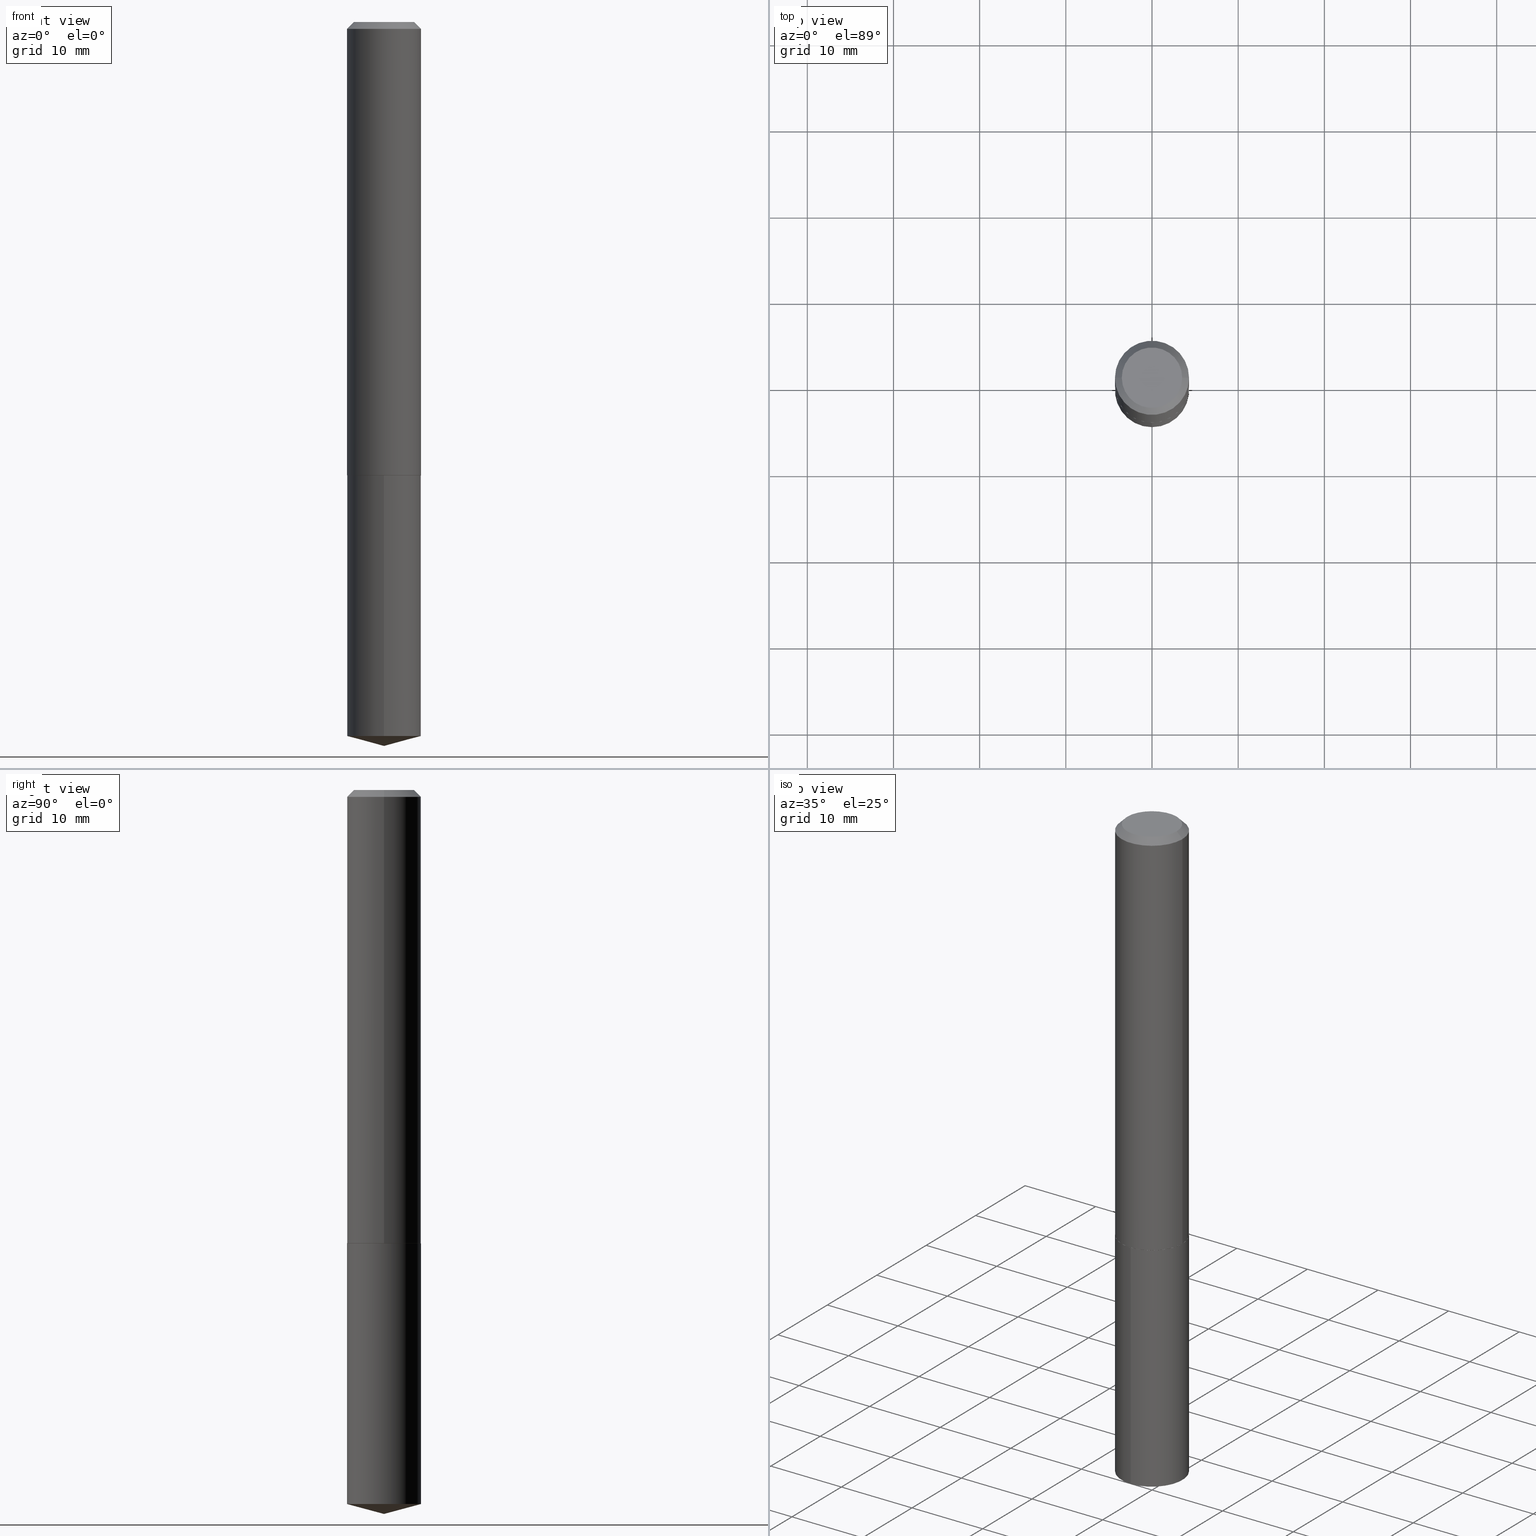
[diagram: canonical four-view strip — front | top / right | iso, engineering-drawing reading convention]
A machine part, canonical four-view strip (front | top / right | iso — engineering-drawing reading convention). The complete STEP part file that produces these views, byte-faithful:
ISO-10303-21;
HEADER;
FILE_DESCRIPTION (( 'STEP AP203' ),
    '1' );
FILE_NAME ('63021.STEP',
    '2024-04-23T07:50:31',
    ( '' ),
    ( '' ),
    'SwSTEP 2.0',
    'SolidWorks 2023',
    '' );
FILE_SCHEMA (( 'CONFIG_CONTROL_DESIGN' ));
ENDSEC;

DATA;
#1 = DIRECTION ( 'NONE',  ( -6.982962677686265922E-15, -1.000000000000000000, 3.227227399485248397E-15 ) ) ;
#2 = VERTEX_POINT ( 'NONE', #236 ) ;
#3 = EDGE_CURVE ( 'NONE', #146, #276, #387, .T. ) ;
#4 = CARTESIAN_POINT ( 'NONE',  ( 5.064321350728799708E-29, -7.230508704610271415E-15, -2.070899999999999963 ) ) ;
#5 = CARTESIAN_POINT ( 'NONE',  ( 5.064321350728799708E-29, -7.230508704610271415E-15, -2.070900000000000407 ) ) ;
#6 = CARTESIAN_POINT ( 'NONE',  ( 5.064321350728799708E-29, -7.230508704610271415E-15, -2.070900000000000407 ) ) ;
#7 = CARTESIAN_POINT ( 'NONE',  ( -1.182215581332204746E-15, -0.1693000000000113858, -3.261736201721411099 ) ) ;
#8 = PLANE ( 'NONE',  #169 ) ;
#9 = CARTESIAN_POINT ( 'NONE',  ( 7.642090019328600035E-31, -1.091087918388489897E-16, -0.03125000000000020123 ) ) ;
#10 = ORIENTED_EDGE ( 'NONE', *, *, #67, .F. ) ;
#11 = EDGE_CURVE ( 'NONE', #353, #146, #65, .T. ) ;
#12 = AXIS2_PLACEMENT_3D ( 'NONE', #237, #207, #178 ) ;
#13 = ORIENTED_EDGE ( 'NONE', *, *, #306, .T. ) ;
#14 = ADVANCED_FACE ( 'NONE', ( #68 ), #199, .T. ) ;
#15 = AXIS2_PLACEMENT_3D ( 'NONE', #9, #272, #174 ) ;
#16 = PRODUCT_DEFINITION_SHAPE ( 'NONE', 'NONE',  #223 ) ;
#17 = DIMENSIONAL_EXPONENTS ( 1.000000000000000000, 0.000000000000000000, 0.000000000000000000, 0.000000000000000000, 0.000000000000000000, 0.000000000000000000, 0.000000000000000000 ) ;
#18 = CIRCLE ( 'NONE', #228, 0.1380500000000000060 ) ;
#19 = AXIS2_PLACEMENT_3D ( 'NONE', #97, #122, #1 ) ;
#20 = APPROVAL_DATE_TIME ( #358, #266 ) ;
#21 = DIRECTION ( 'NONE',  ( -6.745023994389839133E-15, -0.9659258262890676461, 0.2588190451025227934 ) ) ;
#22 = EDGE_LOOP ( 'NONE', ( #277, #334, #216, #165 ) ) ;
#23 = DATE_AND_TIME ( #260, #95 ) ;
#24 = ADVANCED_FACE ( 'NONE', ( #250 ), #206, .F. ) ;
#25 = ORIENTED_EDGE ( 'NONE', *, *, #306, .F. ) ;
#26 = CLOSED_SHELL ( 'NONE', ( #307, #386, #299, #363, #24 ) ) ;
#27 = ORIENTED_EDGE ( 'NONE', *, *, #253, .F. ) ;
#28 = PERSON_AND_ORGANIZATION ( #304, #350 ) ;
#29 = FACE_OUTER_BOUND ( 'NONE', #295, .T. ) ;
#30 = CARTESIAN_POINT ( 'NONE',  ( 0.1693000000000000338, -1.291324373171134113E-15, -0.03125000000000020123 ) ) ;
#31 = CIRCLE ( 'NONE', #128, 0.1688000000000002554 ) ;
#32 = VECTOR ( 'NONE', #309, 39.37007874015748143 ) ;
#33 = DIRECTION ( 'NONE',  ( 1.000000000000000000, -6.982962677686266711E-15, 4.876176775795935793E-29 ) ) ;
#34 = ORIENTED_EDGE ( 'NONE', *, *, #49, .T. ) ;
#35 = DIRECTION ( 'NONE',  ( 1.000000000000000000, -6.982962677686264344E-15, 0.000000000000000000 ) ) ;
#36 = EDGE_CURVE ( 'NONE', #262, #390, #246, .T. ) ;
#37 = LINE ( 'NONE', #279, #220 ) ;
#38 = CARTESIAN_POINT ( 'NONE',  ( -0.1693000000000000338, 1.073106789493436109E-15, -0.03125000000000020123 ) ) ;
#39 = DIRECTION ( 'NONE',  ( -2.445468806185136877E-29, 3.491481338843145188E-15, 1.000000000000000000 ) ) ;
#40 = VECTOR ( 'NONE', #39, 39.37007874015748143 ) ;
#41 = DIRECTION ( 'NONE',  ( 1.000000000000000000, -6.982962677686266711E-15, 4.876176775795935793E-29 ) ) ;
#42 = CIRCLE ( 'NONE', #162, 0.1693000000000000338 ) ;
#43 =( NAMED_UNIT ( * ) PLANE_ANGLE_UNIT ( ) SI_UNIT ( $, .RADIAN. ) );
#44 = EDGE_CURVE ( 'NONE', #94, #151, #238, .T. ) ;
#45 = PERSON_AND_ORGANIZATION ( #304, #350 ) ;
#46 = LINE ( 'NONE', #101, #120 ) ;
#47 = EDGE_CURVE ( 'NONE', #2, #168, #31, .T. ) ;
#48 = LOCAL_TIME ( 3, 50, 31.00000000000000000, #330 ) ;
#49 = EDGE_CURVE ( 'NONE', #168, #353, #239, .T. ) ;
#50 = ORIENTED_EDGE ( 'NONE', *, *, #44, .F. ) ;
#51 = DIRECTION ( 'NONE',  ( 1.000000000000000000, -6.982962677686266711E-15, 4.876184709317979001E-29 ) ) ;
#52 = ORIENTED_EDGE ( 'NONE', *, *, #3, .F. ) ;
#53 = ORIENTED_EDGE ( 'NONE', *, *, #379, .T. ) ;
#54 = PERSON_AND_ORGANIZATION ( #304, #350 ) ;
#55 = CARTESIAN_POINT ( 'NONE',  ( 5.063098616325708028E-29, -7.228762963940850701E-15, -2.070400000000000240 ) ) ;
#56 = DIRECTION ( 'NONE',  ( -6.982962677686265922E-15, -1.000000000000000000, 3.227227399485248397E-15 ) ) ;
#57 = DESIGN_CONTEXT ( 'detailed design', #316, 'design' ) ;
#58 = DIRECTION ( 'NONE',  ( -6.982962677686265922E-15, -1.000000000000000000, 3.227227399485248397E-15 ) ) ;
#59 = DIRECTION ( 'NONE',  ( 2.445468806185136597E-29, -3.491481338843145583E-15, -1.000000000000000000 ) ) ;
#60 = AXIS2_PLACEMENT_3D ( 'NONE', #249, #241, #56 ) ;
#61 = EDGE_CURVE ( 'NONE', #390, #262, #18, .T. ) ;
#62 = FACE_OUTER_BOUND ( 'NONE', #111, .T. ) ;
#63 = CARTESIAN_POINT ( 'NONE',  ( -8.819036213886965882E-28, 1.259139726017065029E-13, 36.06297874015748306 ) ) ;
#64 = DIRECTION ( 'NONE',  ( -2.445468806185136597E-29, 3.491481338843145583E-15, 1.000000000000000000 ) ) ;
#65 = LINE ( 'NONE', #344, #40 ) ;
#66 = DIRECTION ( 'NONE',  ( 0.7071067811868372299, -2.468850131085291414E-15, 0.7071067811862578045 ) ) ;
#67 = EDGE_CURVE ( 'NONE', #390, #146, #362, .T. ) ;
#68 = FACE_OUTER_BOUND ( 'NONE', #147, .T. ) ;
#69 = AXIS2_PLACEMENT_3D ( 'NONE', #338, #59, #185 ) ;
#70 = DIRECTION ( 'NONE',  ( -1.000000000000000000, 6.982962677686265922E-15, -4.876176775795935793E-29 ) ) ;
#71 = CARTESIAN_POINT ( 'NONE',  ( 0.000000000000000000, 0.000000000000000000, 0.000000000000000000 ) ) ;
#72 = AXIS2_PLACEMENT_3D ( 'NONE', #374, #137, #51 ) ;
#73 = ADVANCED_FACE ( 'NONE', ( #337 ), #8, .F. ) ;
#74 = DIRECTION ( 'NONE',  ( -2.445454975221157966E-29, 3.491501145570772643E-15, 1.000000000000000000 ) ) ;
#75 = FACE_OUTER_BOUND ( 'NONE', #144, .T. ) ;
#76 = LINE ( 'NONE', #294, #205 ) ;
#77 = DIRECTION ( 'NONE',  ( -2.445454975221157966E-29, 3.491501145570772643E-15, 1.000000000000000000 ) ) ;
#78 = COORDINATED_UNIVERSAL_TIME_OFFSET ( 5, 0, .BEHIND. ) ;
#79 = EDGE_CURVE ( 'NONE', #357, #151, #323, .T. ) ;
#80 = CARTESIAN_POINT ( 'NONE',  ( 8.087364148553891631E-29, -1.154674343851710215E-14, -3.307100000000000151 ) ) ;
#81 = APPROVAL_STATUS ( 'not_yet_approved' ) ;
#82 =( GEOMETRIC_REPRESENTATION_CONTEXT ( 3 ) GLOBAL_UNCERTAINTY_ASSIGNED_CONTEXT ( ( #100 ) ) GLOBAL_UNIT_ASSIGNED_CONTEXT ( ( #196, #43, #259 ) ) REPRESENTATION_CONTEXT ( 'NONE', 'WORKASPACE' ) );
#83 = ORIENTED_EDGE ( 'NONE', *, *, #251, .T. ) ;
#84 = PERSON_AND_ORGANIZATION ( #304, #350 ) ;
#85 = ADVANCED_FACE ( 'NONE', ( #310 ), #181, .T. ) ;
#86 = CIRCLE ( 'NONE', #60, 0.1693000000000000338 ) ;
#87 = CIRCLE ( 'NONE', #313, 0.1693000000000002836 ) ;
#88 = DIRECTION ( 'NONE',  ( -2.445454975221157966E-29, 3.491501145570772643E-15, 1.000000000000000000 ) ) ;
#89 = CARTESIAN_POINT ( 'NONE',  ( 0.1693000000000000338, -1.270591102861569468E-15, -0.03125000000000020123 ) ) ;
#90 = DIRECTION ( 'NONE',  ( -2.445468806185136597E-29, 3.491481338843145583E-15, 1.000000000000000000 ) ) ;
#91 = DIRECTION ( 'NONE',  ( 6.982962677686265922E-15, 1.000000000000000000, -3.491501145570772643E-15 ) ) ;
#92 = ADVANCED_FACE ( 'NONE', ( #302 ), #153, .F. ) ;
#93 = CARTESIAN_POINT ( 'NONE',  ( 0.1688000000000002554, -8.409232804603714801E-15, -2.070899999999999963 ) ) ;
#94 = VERTEX_POINT ( 'NONE', #7 ) ;
#95 = LOCAL_TIME ( 3, 50, 31.00000000000000000, #141 ) ;
#96 = CARTESIAN_POINT ( 'NONE',  ( -2.994835545909349753E-48, 4.275831445897006817E-34, 1.224646799147362773E-19 ) ) ;
#97 = CARTESIAN_POINT ( 'NONE',  ( 7.976457664901892933E-29, -1.138831466710772650E-14, -3.261736201721411543 ) ) ;
#98 = CARTESIAN_POINT ( 'NONE',  ( 5.063098616325708028E-29, -7.228762963940850701E-15, -2.070400000000000240 ) ) ;
#99 = DIRECTION ( 'NONE',  ( -2.445468806185136597E-29, 3.491481338843145583E-15, 1.000000000000000000 ) ) ;
#100 = UNCERTAINTY_MEASURE_WITH_UNIT (LENGTH_MEASURE( 1.000000000000000082E-05 ), #196, 'distance_accuracy_value', 'NONE');
#101 = CARTESIAN_POINT ( 'NONE',  ( -0.1693000000000001448, 1.202948851641850644E-15, -8.327757107801562718E-30 ) ) ;
#102 = DATE_AND_TIME ( #375, #289 ) ;
#103 = CYLINDRICAL_SURFACE ( 'NONE', #333, 0.1693000000000000338 ) ;
#104 = APPROVAL_ROLE ( '' ) ;
#105 = APPROVAL_STATUS ( 'not_yet_approved' ) ;
#106 = DATE_AND_TIME ( #384, #200 ) ;
#107 = EDGE_CURVE ( 'NONE', #94, #229, #86, .T. ) ;
#108 = EDGE_LOOP ( 'NONE', ( #385, #143, #183, #325 ) ) ;
#109 = MANIFOLD_SOLID_BREP ( 'Body-Move/Copy2[1]', #26 ) ;
#110 = CONICAL_SURFACE ( 'NONE', #382, 0.1693000000000002836, 0.7853981633978580623 ) ;
#111 = EDGE_LOOP ( 'NONE', ( #10, #126, #114, #269 ) ) ;
#112 = CALENDAR_DATE ( 2024, 23, 4 ) ;
#113 = MANIFOLD_SOLID_BREP ( 'Body-Move/Copy2[2]', #340 ) ;
#114 = ORIENTED_EDGE ( 'NONE', *, *, #226, .T. ) ;
#115 = PERSON_AND_ORGANIZATION ( #304, #350 ) ;
#116 = CC_DESIGN_PERSON_AND_ORGANIZATION_ASSIGNMENT ( #54, #301, ( #378 ) ) ;
#117 = DIRECTION ( 'NONE',  ( -2.445468806185136597E-29, 3.491481338843145583E-15, 1.000000000000000000 ) ) ;
#118 = CARTESIAN_POINT ( 'NONE',  ( 0.000000000000000000, 0.000000000000000000, 0.000000000000000000 ) ) ;
#119 = CIRCLE ( 'NONE', #356, 0.1693000000000000338 ) ;
#120 = VECTOR ( 'NONE', #215, 39.37007874015748143 ) ;
#121 = EDGE_LOOP ( 'NONE', ( #157, #13, #129, #148 ) ) ;
#122 = DIRECTION ( 'NONE',  ( -2.445454975221157966E-29, 3.491501145570772643E-15, 1.000000000000000000 ) ) ;
#123 = DIRECTION ( 'NONE',  ( 1.000000000000000000, -6.982962677686265922E-15, 4.876176775795935793E-29 ) ) ;
#124 = DIRECTION ( 'NONE',  ( 2.445454975221157686E-29, -3.491501145570772643E-15, -1.000000000000000000 ) ) ;
#125 = DIRECTION ( 'NONE',  ( -6.982962677686265922E-15, -1.000000000000000000, 3.227227399485248397E-15 ) ) ;
#126 = ORIENTED_EDGE ( 'NONE', *, *, #36, .F. ) ;
#127 = DIRECTION ( 'NONE',  ( -0.7071067811868372299, 7.493145998871401767E-15, 0.7071067811862578045 ) ) ;
#128 = AXIS2_PLACEMENT_3D ( 'NONE', #175, #99, #152 ) ;
#129 = ORIENTED_EDGE ( 'NONE', *, *, #44, .T. ) ;
#130 = AXIS2_PLACEMENT_3D ( 'NONE', #71, #138, #194 ) ;
#131 = CARTESIAN_POINT ( 'NONE',  ( 1.202948851641929333E-15, 0.1692999999999886263, -3.261736201721411987 ) ) ;
#132 = DIRECTION ( 'NONE',  ( 1.000000000000000000, -6.982962677686264344E-15, 0.000000000000000000 ) ) ;
#133 = APPROVAL ( #105, 'UNSPECIFIED' ) ;
#134 = VECTOR ( 'NONE', #66, 39.37007874015748143 ) ;
#135 = CC_DESIGN_SECURITY_CLASSIFICATION ( #378, ( #221 ) ) ;
#136 = PERSON_AND_ORGANIZATION ( #304, #350 ) ;
#137 = DIRECTION ( 'NONE',  ( -2.445468806185136597E-29, 3.491481338843145583E-15, 1.000000000000000000 ) ) ;
#138 = DIRECTION ( 'NONE',  ( 0.000000000000000000, 0.000000000000000000, 1.000000000000000000 ) ) ;
#139 = AXIS2_PLACEMENT_3D ( 'NONE', #4, #367, #123 ) ;
#140 = APPROVAL_PERSON_ORGANIZATION ( #351, #133, #380 ) ;
#141 = COORDINATED_UNIVERSAL_TIME_OFFSET ( 5, 0, .BEHIND. ) ;
#142 = CC_DESIGN_PERSON_AND_ORGANIZATION_ASSIGNMENT ( #115, #354, ( #221 ) ) ;
#143 = ORIENTED_EDGE ( 'NONE', *, *, #291, .T. ) ;
#144 = EDGE_LOOP ( 'NONE', ( #365, #231, #329 ) ) ;
#145 = AXIS2_PLACEMENT_3D ( 'NONE', #5, #124, #91 ) ;
#146 = VERTEX_POINT ( 'NONE', #30 ) ;
#147 = EDGE_LOOP ( 'NONE', ( #232, #282, #34, #332 ) ) ;
#148 = ORIENTED_EDGE ( 'NONE', *, *, #79, .F. ) ;
#149 = FACE_OUTER_BOUND ( 'NONE', #335, .T. ) ;
#150 = AXIS2_PLACEMENT_3D ( 'NONE', #292, #355, #349 ) ;
#151 = VERTEX_POINT ( 'NONE', #364 ) ;
#152 = DIRECTION ( 'NONE',  ( 1.000000000000000000, -6.982962677686267499E-15, 0.000000000000000000 ) ) ;
#153 = PLANE ( 'NONE',  #139 ) ;
#154 = ORIENTED_EDGE ( 'NONE', *, *, #11, .F. ) ;
#155 = CARTESIAN_POINT ( 'NONE',  ( 0.1693000000000002836, -8.410978545273137094E-15, -2.070400000000000240 ) ) ;
#156 = CARTESIAN_POINT ( 'NONE',  ( 1.202948851641900145E-15, 0.1692999999999927896, -2.070900000000000851 ) ) ;
#157 = ORIENTED_EDGE ( 'NONE', *, *, #347, .F. ) ;
#158 = DIRECTION ( 'NONE',  ( -0.7071067811865453523, 2.468850131082234184E-15, -0.7071067811865496822 ) ) ;
#159 = CARTESIAN_POINT ( 'NONE',  ( 5.063098616325708028E-29, -7.228762963940850701E-15, -2.070400000000000240 ) ) ;
#160 = APPROVAL_PERSON_ORGANIZATION ( #136, #266, #104 ) ;
#161 = DIRECTION ( 'NONE',  ( -2.445468806185136597E-29, 3.491481338843145583E-15, 1.000000000000000000 ) ) ;
#162 = AXIS2_PLACEMENT_3D ( 'NONE', #6, #240, #125 ) ;
#163 = CONICAL_SURFACE ( 'NONE', #150, 146.9311341562558084, 1.308996938995748538 ) ;
#164 = CIRCLE ( 'NONE', #19, 0.1693000000000000338 ) ;
#165 = ORIENTED_EDGE ( 'NONE', *, *, #226, .F. ) ;
#166 = ORIENTED_EDGE ( 'NONE', *, *, #49, .F. ) ;
#167 = CARTESIAN_POINT ( 'NONE',  ( 8.087364148553891631E-29, -1.154674343851710215E-14, -3.307100000000000151 ) ) ;
#168 = VERTEX_POINT ( 'NONE', #93 ) ;
#169 = AXIS2_PLACEMENT_3D ( 'NONE', #96, #352, #70 ) ;
#170 = LOCAL_TIME ( 3, 50, 31.00000000000000000, #193 ) ;
#171 = ORIENTED_EDGE ( 'NONE', *, *, #314, .F. ) ;
#172 = DATE_TIME_ROLE ( 'classification_date' ) ;
#173 = DIRECTION ( 'NONE',  ( 1.000000000000000000, -6.982962677686264344E-15, 0.000000000000000000 ) ) ;
#174 = DIRECTION ( 'NONE',  ( -1.000000000000000000, 6.982962677686265922E-15, 0.000000000000000000 ) ) ;
#175 = CARTESIAN_POINT ( 'NONE',  ( 5.064321350728799708E-29, -7.230508704610271415E-15, -2.070899999999999963 ) ) ;
#176 = CARTESIAN_POINT ( 'NONE',  ( 5.063098616325708028E-29, -7.228762963940850701E-15, -2.070400000000000240 ) ) ;
#177 = DIRECTION ( 'NONE',  ( -2.445468806185136597E-29, 3.491481338843145583E-15, 1.000000000000000000 ) ) ;
#178 = DIRECTION ( 'NONE',  ( -6.982962677686265922E-15, -1.000000000000000000, 3.227227399485248397E-15 ) ) ;
#179 = EDGE_CURVE ( 'NONE', #2, #303, #37, .T. ) ;
#180 = LINE ( 'NONE', #156, #32 ) ;
#181 = CONICAL_SURFACE ( 'NONE', #15, 0.1693000000000000338, 0.7853981633974452814 ) ;
#182 = AXIS2_PLACEMENT_3D ( 'NONE', #376, #161, #283 ) ;
#183 = ORIENTED_EDGE ( 'NONE', *, *, #11, .T. ) ;
#184 = ORIENTED_EDGE ( 'NONE', *, *, #61, .T. ) ;
#185 = DIRECTION ( 'NONE',  ( -1.000000000000000000, 6.982962677686265922E-15, 0.000000000000000000 ) ) ;
#186 = ORIENTED_EDGE ( 'NONE', *, *, #347, .T. ) ;
#187 = DIRECTION ( 'NONE',  ( 0.7071067811865453523, -7.319954787623248157E-15, -0.7071067811865496822 ) ) ;
#188 = ADVANCED_FACE ( 'NONE', ( #281 ), #110, .T. ) ;
#189 = DIRECTION ( 'NONE',  ( 1.000000000000000000, -6.982962677686265922E-15, 0.000000000000000000 ) ) ;
#190 = DIRECTION ( 'NONE',  ( -2.445468806185136597E-29, 3.491481338843145583E-15, 1.000000000000000000 ) ) ;
#191 = VECTOR ( 'NONE', #187, 39.37007874015748143 ) ;
#192 = EDGE_CURVE ( 'NONE', #276, #146, #119, .T. ) ;
#193 = COORDINATED_UNIVERSAL_TIME_OFFSET ( 5, 0, .BEHIND. ) ;
#194 = DIRECTION ( 'NONE',  ( 1.000000000000000000, 0.000000000000000000, 0.000000000000000000 ) ) ;
#195 = FACE_OUTER_BOUND ( 'NONE', #108, .T. ) ;
#196 =( CONVERSION_BASED_UNIT ( 'INCH', #381 ) LENGTH_UNIT ( ) NAMED_UNIT ( #17 ) );
#197 = LINE ( 'NONE', #167, #270 ) ;
#198 = EDGE_LOOP ( 'NONE', ( #204, #186, #300, #50 ) ) ;
#199 = CONICAL_SURFACE ( 'NONE', #369, 0.1693000000000002836, 0.7853981633978580623 ) ;
#200 = LOCAL_TIME ( 3, 50, 31.00000000000000000, #230 ) ;
#201 = EDGE_LOOP ( 'NONE', ( #328, #305 ) ) ;
#202 = APPROVAL_ROLE ( '' ) ;
#203 = EDGE_LOOP ( 'NONE', ( #210, #368 ) ) ;
#204 = ORIENTED_EDGE ( 'NONE', *, *, #107, .T. ) ;
#205 = VECTOR ( 'NONE', #263, 39.37007874015748143 ) ;
#206 = PLANE ( 'NONE',  #145 ) ;
#207 = DIRECTION ( 'NONE',  ( -2.445454975221157966E-29, 3.491501145570772643E-15, 1.000000000000000000 ) ) ;
#208 = DIRECTION ( 'NONE',  ( -2.445468806185136597E-29, 3.491481338843145583E-15, 1.000000000000000000 ) ) ;
#209 = DIRECTION ( 'NONE',  ( -2.445468806185136597E-29, 3.491481338843145583E-15, 1.000000000000000000 ) ) ;
#210 = ORIENTED_EDGE ( 'NONE', *, *, #379, .F. ) ;
#211 = CYLINDRICAL_SURFACE ( 'NONE', #234, 0.1693000000000000338 ) ;
#212 = CC_DESIGN_APPROVAL ( #266, ( #221 ) ) ;
#213 = DIRECTION ( 'NONE',  ( -2.445468806185136597E-29, 3.491481338843145583E-15, 1.000000000000000000 ) ) ;
#214 = DIRECTION ( 'NONE',  ( 1.000000000000000000, -6.982962677686265922E-15, 0.000000000000000000 ) ) ;
#215 = DIRECTION ( 'NONE',  ( -2.445468806185136877E-29, 3.491481338843145188E-15, 1.000000000000000000 ) ) ;
#216 = ORIENTED_EDGE ( 'NONE', *, *, #3, .T. ) ;
#217 = PERSON_AND_ORGANIZATION_ROLE ( 'design_owner' ) ;
#218 = APPROVAL_DATE_TIME ( #102, #133 ) ;
#219 = CARTESIAN_POINT ( 'NONE',  ( 5.064321350728799708E-29, -7.230508704610271415E-15, -2.070900000000000407 ) ) ;
#220 = VECTOR ( 'NONE', #127, 39.37007874015748143 ) ;
#221 = PRODUCT_DEFINITION_FORMATION_WITH_SPECIFIED_SOURCE ( 'ANY', '', #256, .NOT_KNOWN. ) ;
#222 = APPLICATION_PROTOCOL_DEFINITION ( 'international standard', 'config_control_design', 1994, #225 ) ;
#223 = PRODUCT_DEFINITION ( 'UNKNOWN', '', #221, #57 ) ;
#224 = PERSON_AND_ORGANIZATION_ROLE ( 'creator' ) ;
#225 = APPLICATION_CONTEXT ( 'configuration controlled 3d designs of mechanical parts and assemblies' ) ;
#226 = EDGE_CURVE ( 'NONE', #262, #276, #311, .T. ) ;
#227 = CC_DESIGN_DATE_AND_TIME_ASSIGNMENT ( #318, #290, ( #223 ) ) ;
#228 = AXIS2_PLACEMENT_3D ( 'NONE', #245, #209, #370 ) ;
#229 = VERTEX_POINT ( 'NONE', #131 ) ;
#230 = COORDINATED_UNIVERSAL_TIME_OFFSET ( 5, 0, .BEHIND. ) ;
#231 = ORIENTED_EDGE ( 'NONE', *, *, #253, .T. ) ;
#232 = ORIENTED_EDGE ( 'NONE', *, *, #179, .F. ) ;
#233 = CC_DESIGN_DATE_AND_TIME_ASSIGNMENT ( #106, #172, ( #378 ) ) ;
#234 = AXIS2_PLACEMENT_3D ( 'NONE', #274, #88, #58 ) ;
#235 = FACE_OUTER_BOUND ( 'NONE', #198, .T. ) ;
#236 = CARTESIAN_POINT ( 'NONE',  ( -0.1688000000000002554, -6.028463339473109878E-15, -2.070899999999999963 ) ) ;
#237 = CARTESIAN_POINT ( 'NONE',  ( 5.064321350728799708E-29, -7.230508704610271415E-15, -2.070900000000000407 ) ) ;
#238 = LINE ( 'NONE', #315, #298 ) ;
#239 = LINE ( 'NONE', #155, #134 ) ;
#240 = DIRECTION ( 'NONE',  ( -2.445454975221157966E-29, 3.491501145570772643E-15, 1.000000000000000000 ) ) ;
#241 = DIRECTION ( 'NONE',  ( -2.445454975221157966E-29, 3.491501145570772643E-15, 1.000000000000000000 ) ) ;
#242 = VERTEX_POINT ( 'NONE', #80 ) ;
#243 = CARTESIAN_POINT ( 'NONE',  ( -0.1380500000000000060, 1.018552393574012742E-15, 2.449293598225403624E-19 ) ) ;
#244 = DIRECTION ( 'NONE',  ( -2.445468806185136597E-29, 3.491481338843145583E-15, 1.000000000000000000 ) ) ;
#245 = CARTESIAN_POINT ( 'NONE',  ( -5.989671091818699506E-48, 8.551662891794013634E-34, 2.449293598294725547E-19 ) ) ;
#246 = CIRCLE ( 'NONE', #72, 0.1380500000000000060 ) ;
#247 = CARTESIAN_POINT ( 'NONE',  ( -0.1693000000000000338, -2.465987026247997876E-15, -0.03125000000000020123 ) ) ;
#248 = EDGE_LOOP ( 'NONE', ( #53, #265, #171, #166 ) ) ;
#249 = CARTESIAN_POINT ( 'NONE',  ( 7.976457664901892933E-29, -1.138831466710772650E-14, -3.261736201721411543 ) ) ;
#250 = FACE_OUTER_BOUND ( 'NONE', #201, .T. ) ;
#251 = EDGE_CURVE ( 'NONE', #242, #94, #197, .T. ) ;
#252 = PERSON_AND_ORGANIZATION ( #304, #350 ) ;
#253 = EDGE_CURVE ( 'NONE', #242, #229, #76, .T. ) ;
#254 = CC_DESIGN_APPROVAL ( #261, ( #378 ) ) ;
#255 = APPLICATION_PROTOCOL_DEFINITION ( 'international standard', 'config_control_design', 1994, #316 ) ;
#256 = PRODUCT ( '63021', '63021', '', ( #322 ) ) ;
#257 = APPROVAL_STATUS ( 'not_yet_approved' ) ;
#258 = AXIS2_PLACEMENT_3D ( 'NONE', #366, #208, #33 ) ;
#259 =( NAMED_UNIT ( * ) SI_UNIT ( $, .STERADIAN. ) SOLID_ANGLE_UNIT ( ) );
#260 = CALENDAR_DATE ( 2024, 23, 4 ) ;
#261 = APPROVAL ( #81, 'UNSPECIFIED' ) ;
#262 = VERTEX_POINT ( 'NONE', #243 ) ;
#263 = DIRECTION ( 'NONE',  ( 6.863315791527694259E-15, 0.9659258262890694224, 0.2588190451025160765 ) ) ;
#264 = APPROVAL_PERSON_ORGANIZATION ( #28, #261, #202 ) ;
#265 = ORIENTED_EDGE ( 'NONE', *, *, #179, .T. ) ;
#266 = APPROVAL ( #257, 'UNSPECIFIED' ) ;
#267 = DIRECTION ( 'NONE',  ( -6.982962677686266711E-15, -1.000000000000000000, 3.510303681827621500E-15 ) ) ;
#268 = DIRECTION ( 'NONE',  ( 1.000000000000000000, -6.982962677686264344E-15, 0.000000000000000000 ) ) ;
#269 = ORIENTED_EDGE ( 'NONE', *, *, #192, .T. ) ;
#270 = VECTOR ( 'NONE', #21, 39.37007874015748854 ) ;
#271 = CYLINDRICAL_SURFACE ( 'NONE', #258, 0.1693000000000001448 ) ;
#272 = DIRECTION ( 'NONE',  ( 2.445468806185136597E-29, -3.491481338843145583E-15, -1.000000000000000000 ) ) ;
#273 = ORIENTED_EDGE ( 'NONE', *, *, #314, .T. ) ;
#274 = CARTESIAN_POINT ( 'NONE',  ( 5.064321350728799708E-29, -7.230508704610271415E-15, -2.070900000000000407 ) ) ;
#275 = CC_DESIGN_PERSON_AND_ORGANIZATION_ASSIGNMENT ( #252, #217, ( #256 ) ) ;
#276 = VERTEX_POINT ( 'NONE', #247 ) ;
#277 = ORIENTED_EDGE ( 'NONE', *, *, #61, .F. ) ;
#278 = DIRECTION ( 'NONE',  ( -2.445454975221157966E-29, 3.491501145570772643E-15, 1.000000000000000000 ) ) ;
#279 = CARTESIAN_POINT ( 'NONE',  ( -0.1693000000000002836, -6.025814112298998676E-15, -2.070400000000000240 ) ) ;
#280 = ORIENTED_EDGE ( 'NONE', *, *, #36, .T. ) ;
#281 = FACE_OUTER_BOUND ( 'NONE', #248, .T. ) ;
#282 = ORIENTED_EDGE ( 'NONE', *, *, #47, .T. ) ;
#283 = DIRECTION ( 'NONE',  ( 1.000000000000000000, -6.982962677686267499E-15, 0.000000000000000000 ) ) ;
#284 = DIRECTION ( 'NONE',  ( -6.982962677686265922E-15, -1.000000000000000000, 3.227227399485248397E-15 ) ) ;
#285 = CC_DESIGN_PERSON_AND_ORGANIZATION_ASSIGNMENT ( #45, #224, ( #223 ) ) ;
#286 =( LENGTH_UNIT ( ) NAMED_UNIT ( * ) SI_UNIT ( $, .METRE. ) );
#287 = FACE_OUTER_BOUND ( 'NONE', #121, .T. ) ;
#288 = CONICAL_SURFACE ( 'NONE', #377, 146.9311341562558084, 1.308996938995748538 ) ;
#289 = LOCAL_TIME ( 3, 50, 31.00000000000000000, #78 ) ;
#290 = DATE_TIME_ROLE ( 'creation_date' ) ;
#291 = EDGE_CURVE ( 'NONE', #303, #353, #360, .T. ) ;
#292 = CARTESIAN_POINT ( 'NONE',  ( -8.819036213886965882E-28, 1.259139726017065029E-13, 36.06297874015748306 ) ) ;
#293 = SHAPE_DEFINITION_REPRESENTATION ( #16, #339 ) ;
#294 = CARTESIAN_POINT ( 'NONE',  ( 8.087421935963088159E-29, -1.154666140301261750E-14, -3.307100000000000151 ) ) ;
#295 = EDGE_LOOP ( 'NONE', ( #27, #83, #25 ) ) ;
#296 = APPROVAL_DATE_TIME ( #23, #261 ) ;
#297 = ORIENTED_EDGE ( 'NONE', *, *, #359, .T. ) ;
#298 = VECTOR ( 'NONE', #77, 39.37007874015748143 ) ;
#299 = ADVANCED_FACE ( 'NONE', ( #29 ), #288, .T. ) ;
#300 = ORIENTED_EDGE ( 'NONE', *, *, #317, .F. ) ;
#301 = PERSON_AND_ORGANIZATION_ROLE ( 'classification_officer' ) ;
#302 = FACE_OUTER_BOUND ( 'NONE', #203, .T. ) ;
#303 = VERTEX_POINT ( 'NONE', #342 ) ;
#304 = PERSON ( 'UNSPECIFIED', 'UNSPECIFIED', 'UNSPECIFIED', ('UNSPECIFIED'), ('UNSPECIFIED'), ('UNSPECIFIED') ) ;
#305 = ORIENTED_EDGE ( 'NONE', *, *, #79, .T. ) ;
#306 = EDGE_CURVE ( 'NONE', #229, #94, #164, .T. ) ;
#307 = ADVANCED_FACE ( 'NONE', ( #235 ), #211, .T. ) ;
#308 = AXIS2_PLACEMENT_3D ( 'NONE', #118, #190, #41 ) ;
#309 = DIRECTION ( 'NONE',  ( -2.445454975221157966E-29, 3.491501145570772643E-15, 1.000000000000000000 ) ) ;
#310 = FACE_OUTER_BOUND ( 'NONE', #22, .T. ) ;
#311 = LINE ( 'NONE', #38, #312 ) ;
#312 = VECTOR ( 'NONE', #158, 39.37007874015748143 ) ;
#313 = AXIS2_PLACEMENT_3D ( 'NONE', #176, #90, #35 ) ;
#314 = EDGE_CURVE ( 'NONE', #353, #303, #87, .T. ) ;
#315 = CARTESIAN_POINT ( 'NONE',  ( -1.182215581332234328E-15, -0.1693000000000072502, -2.070899999999999963 ) ) ;
#316 = APPLICATION_CONTEXT ( 'configuration controlled 3d designs of mechanical parts and assemblies' ) ;
#317 = EDGE_CURVE ( 'NONE', #151, #357, #42, .T. ) ;
#318 = DATE_AND_TIME ( #348, #170 ) ;
#319 = PRODUCT_RELATED_PRODUCT_CATEGORY ( 'detail', '', ( #256 ) ) ;
#320 = CARTESIAN_POINT ( 'NONE',  ( 1.202948851641929530E-15, 0.1692999999999928173, -2.070900000000000851 ) ) ;
#321 = AXIS2_PLACEMENT_3D ( 'NONE', #361, #244, #214 ) ;
#322 = MECHANICAL_CONTEXT ( 'NONE', #225, 'mechanical' ) ;
#323 = CIRCLE ( 'NONE', #12, 0.1693000000000000338 ) ;
#324 = ADVANCED_FACE ( 'NONE', ( #149 ), #271, .T. ) ;
#325 = ORIENTED_EDGE ( 'NONE', *, *, #192, .F. ) ;
#326 = CONICAL_SURFACE ( 'NONE', #69, 0.1693000000000000338, 0.7853981633974452814 ) ;
#327 = PERSON_AND_ORGANIZATION_ROLE ( 'design_supplier' ) ;
#328 = ORIENTED_EDGE ( 'NONE', *, *, #317, .T. ) ;
#329 = ORIENTED_EDGE ( 'NONE', *, *, #107, .F. ) ;
#330 = COORDINATED_UNIVERSAL_TIME_OFFSET ( 5, 0, .BEHIND. ) ;
#331 = CC_DESIGN_PERSON_AND_ORGANIZATION_ASSIGNMENT ( #84, #327, ( #221 ) ) ;
#332 = ORIENTED_EDGE ( 'NONE', *, *, #291, .F. ) ;
#333 = AXIS2_PLACEMENT_3D ( 'NONE', #219, #74, #284 ) ;
#334 = ORIENTED_EDGE ( 'NONE', *, *, #67, .T. ) ;
#335 = EDGE_LOOP ( 'NONE', ( #273, #297, #52, #154 ) ) ;
#336 = ADVANCED_FACE ( 'NONE', ( #62 ), #326, .T. ) ;
#337 = FACE_OUTER_BOUND ( 'NONE', #372, .T. ) ;
#338 = CARTESIAN_POINT ( 'NONE',  ( 7.642090019328600035E-31, -1.091087918388489897E-16, -0.03125000000000020123 ) ) ;
#339 = ADVANCED_BREP_SHAPE_REPRESENTATION ( '63021', ( #109, #113, #130 ), #82 ) ;
#340 = CLOSED_SHELL ( 'NONE', ( #85, #324, #188, #92, #14, #373, #336, #73 ) ) ;
#341 = CIRCLE ( 'NONE', #182, 0.1688000000000002554 ) ;
#342 = CARTESIAN_POINT ( 'NONE',  ( -0.1693000000000002836, -6.025814112298998676E-15, -2.070400000000000240 ) ) ;
#343 = CARTESIAN_POINT ( 'NONE',  ( 7.642090019328600035E-31, -1.091087918388489897E-16, -0.03125000000000020123 ) ) ;
#344 = CARTESIAN_POINT ( 'NONE',  ( 0.1693000000000001448, -1.182215581332285999E-15, 8.255367281422526831E-30 ) ) ;
#345 = CYLINDRICAL_SURFACE ( 'NONE', #308, 0.1693000000000001448 ) ;
#346 = AXIS2_PLACEMENT_3D ( 'NONE', #55, #117, #173 ) ;
#347 = EDGE_CURVE ( 'NONE', #229, #357, #180, .T. ) ;
#348 = CALENDAR_DATE ( 2024, 23, 4 ) ;
#349 = DIRECTION ( 'NONE',  ( -6.982962677686266711E-15, -1.000000000000000000, 3.510303681827621500E-15 ) ) ;
#350 = ORGANIZATION ( 'UNSPECIFIED', 'UNSPECIFIED', '' ) ;
#351 = PERSON_AND_ORGANIZATION ( #304, #350 ) ;
#352 = DIRECTION ( 'NONE',  ( 2.438088387897960049E-29, -3.491481338843145188E-15, -1.000000000000000000 ) ) ;
#353 = VERTEX_POINT ( 'NONE', #371 ) ;
#354 = PERSON_AND_ORGANIZATION_ROLE ( 'creator' ) ;
#355 = DIRECTION ( 'NONE',  ( -2.445454975221157966E-29, 3.491501145570772643E-15, 1.000000000000000000 ) ) ;
#356 = AXIS2_PLACEMENT_3D ( 'NONE', #343, #64, #189 ) ;
#357 = VERTEX_POINT ( 'NONE', #320 ) ;
#358 = DATE_AND_TIME ( #112, #48 ) ;
#359 = EDGE_CURVE ( 'NONE', #303, #276, #46, .T. ) ;
#360 = CIRCLE ( 'NONE', #346, 0.1693000000000002836 ) ;
#361 = CARTESIAN_POINT ( 'NONE',  ( 7.642090019328600035E-31, -1.091087918388489897E-16, -0.03125000000000020123 ) ) ;
#362 = LINE ( 'NONE', #89, #191 ) ;
#363 = ADVANCED_FACE ( 'NONE', ( #287 ), #103, .T. ) ;
#364 = CARTESIAN_POINT ( 'NONE',  ( -1.182215581332234328E-15, -0.1693000000000072502, -2.070899999999999963 ) ) ;
#365 = ORIENTED_EDGE ( 'NONE', *, *, #251, .F. ) ;
#366 = CARTESIAN_POINT ( 'NONE',  ( 0.000000000000000000, 0.000000000000000000, 0.000000000000000000 ) ) ;
#367 = DIRECTION ( 'NONE',  ( -2.438088387897960049E-29, 3.491481338843145188E-15, 1.000000000000000000 ) ) ;
#368 = ORIENTED_EDGE ( 'NONE', *, *, #47, .F. ) ;
#369 = AXIS2_PLACEMENT_3D ( 'NONE', #159, #177, #132 ) ;
#370 = DIRECTION ( 'NONE',  ( 1.000000000000000000, -6.982962677686266711E-15, 4.876184709317979001E-29 ) ) ;
#371 = CARTESIAN_POINT ( 'NONE',  ( 0.1693000000000002836, -8.410978545273137094E-15, -2.070400000000000240 ) ) ;
#372 = EDGE_LOOP ( 'NONE', ( #280, #184 ) ) ;
#373 = ADVANCED_FACE ( 'NONE', ( #195 ), #345, .T. ) ;
#374 = CARTESIAN_POINT ( 'NONE',  ( -5.989671091818699506E-48, 8.551662891794013634E-34, 2.449293598294725547E-19 ) ) ;
#375 = CALENDAR_DATE ( 2024, 23, 4 ) ;
#376 = CARTESIAN_POINT ( 'NONE',  ( 5.064321350728799708E-29, -7.230508704610271415E-15, -2.070899999999999963 ) ) ;
#377 = AXIS2_PLACEMENT_3D ( 'NONE', #63, #278, #267 ) ;
#378 = SECURITY_CLASSIFICATION ( '', '', #389 ) ;
#379 = EDGE_CURVE ( 'NONE', #168, #2, #341, .T. ) ;
#380 = APPROVAL_ROLE ( '' ) ;
#381 = LENGTH_MEASURE_WITH_UNIT ( LENGTH_MEASURE( 0.02539999999999999897 ), #286 );
#382 = AXIS2_PLACEMENT_3D ( 'NONE', #98, #213, #268 ) ;
#383 = CARTESIAN_POINT ( 'NONE',  ( 0.1380500000000000060, -1.108841425726964737E-15, 2.449293598367200216E-19 ) ) ;
#384 = CALENDAR_DATE ( 2024, 23, 4 ) ;
#385 = ORIENTED_EDGE ( 'NONE', *, *, #359, .F. ) ;
#386 = ADVANCED_FACE ( 'NONE', ( #75 ), #163, .T. ) ;
#387 = CIRCLE ( 'NONE', #321, 0.1693000000000000338 ) ;
#388 = CC_DESIGN_APPROVAL ( #133, ( #223 ) ) ;
#389 = SECURITY_CLASSIFICATION_LEVEL ( 'unclassified' ) ;
#390 = VERTEX_POINT ( 'NONE', #383 ) ;
ENDSEC;
END-ISO-10303-21;
